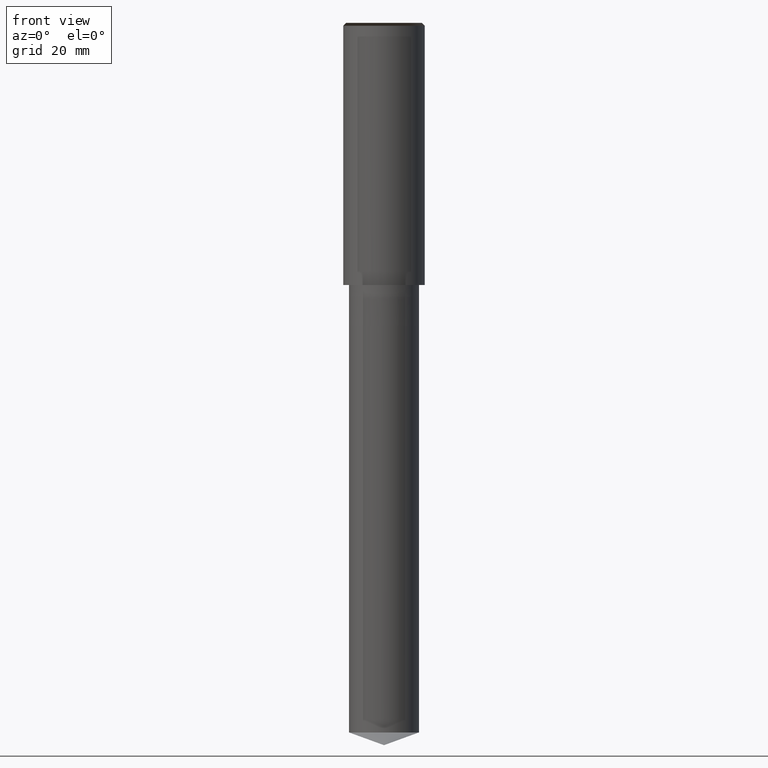
[diagram: clean part render]
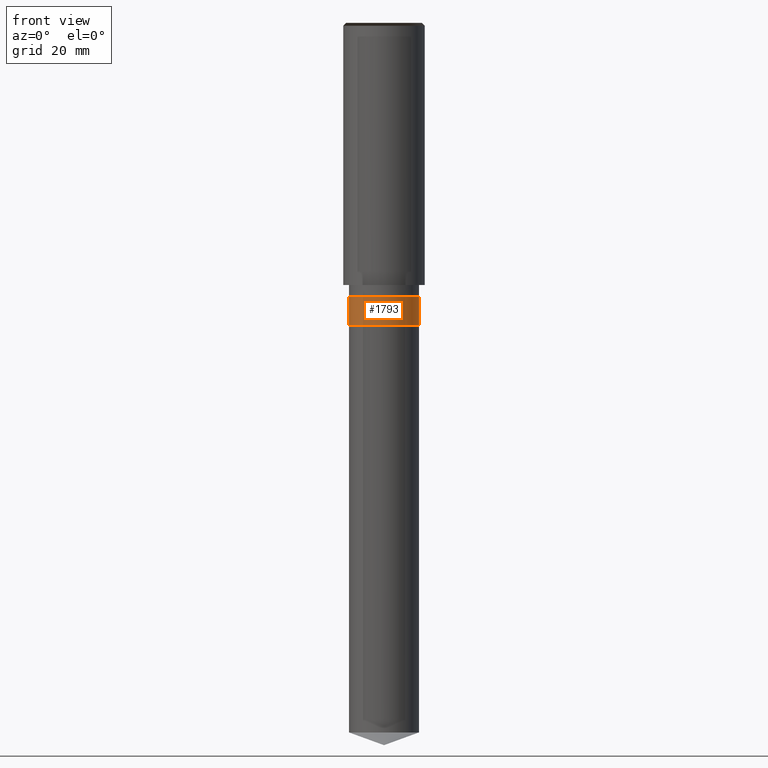
[diagram: same view with one face highlighted and labeled with its STEP entity id]
A machine part, front view. The second image highlights one B-rep face of the part: STEP entity #1793.
In plain terms, the highlighted face is a freeform B-spline surface patch.
Its self-contained STEP definition (entity closure, byte-faithful):
#1460=CARTESIAN_POINT('',(6.0,0.0,-7.0));
#1464=CARTESIAN_POINT('',(-6.0,0.0,-7.0));
#1469=CARTESIAN_POINT('',(-6.0,-6.0,-7.0));
#1470=CARTESIAN_POINT('',(0.0,-6.0,-7.0));
#1471=CARTESIAN_POINT('',(6.0,-6.0,-7.0));
#1472=CARTESIAN_POINT('',(6.0,0.0,-2.0));
#1476=CARTESIAN_POINT('',(-6.0,0.0,-2.0));
#1498=CARTESIAN_POINT('',(-6.0,-6.0,-2.0));
#1499=CARTESIAN_POINT('',(0.0,-6.0,-2.0));
#1500=CARTESIAN_POINT('',(6.0,-6.0,-2.0));
#1774=(
BOUNDED_SURFACE()
B_SPLINE_SURFACE(1,2,(
(#1464,#1469,#1470,#1471,#1460),
(#1476,#1498,#1499,#1500,#1472)
), .UNSPECIFIED.,.F.,.F.,.F.)
B_SPLINE_SURFACE_WITH_KNOTS((2,2),(3,2,3),(
0.0,1.0),(
0.0,0.5,1.0), .UNSPECIFIED.)
GEOMETRIC_REPRESENTATION_ITEM()
RATIONAL_B_SPLINE_SURFACE(((1.0,0.707106781187,1.0,0.707106781187,1.0),
(1.0,0.707106781187,1.0,0.707106781187,1.0)
))
REPRESENTATION_ITEM('')
SURFACE()
);
#1775=(
BOUNDED_CURVE()
B_SPLINE_CURVE(2,(#1460,#1471,#1470,#1469,#1464),.UNSPECIFIED.,.F.,.F.)
B_SPLINE_CURVE_WITH_KNOTS((3,2,3),
(0.0,0.5,1.0),.UNSPECIFIED.)
CURVE()
GEOMETRIC_REPRESENTATION_ITEM()
RATIONAL_B_SPLINE_CURVE((1.0,0.707106781187,1.0,0.707106781187,1.0))
REPRESENTATION_ITEM('')
);
#1776=(
BOUNDED_CURVE()
B_SPLINE_CURVE(1,(#1464,#1476),.UNSPECIFIED.,.F.,.F.)
B_SPLINE_CURVE_WITH_KNOTS((2,2),
(0.0,1.0),.UNSPECIFIED.)
CURVE()
GEOMETRIC_REPRESENTATION_ITEM()
RATIONAL_B_SPLINE_CURVE((1.0,1.0))
REPRESENTATION_ITEM('')
);
#1777=(
BOUNDED_CURVE()
B_SPLINE_CURVE(2,(#1476,#1498,#1499,#1500,#1472),.UNSPECIFIED.,.F.,.F.)
B_SPLINE_CURVE_WITH_KNOTS((3,2,3),
(0.0,0.5,1.0),.UNSPECIFIED.)
CURVE()
GEOMETRIC_REPRESENTATION_ITEM()
RATIONAL_B_SPLINE_CURVE((1.0,0.707106781187,1.0,0.707106781187,1.0))
REPRESENTATION_ITEM('')
);
#1778=(
BOUNDED_CURVE()
B_SPLINE_CURVE(1,(#1472,#1460),.UNSPECIFIED.,.F.,.F.)
B_SPLINE_CURVE_WITH_KNOTS((2,2),
(0.0,1.0),.UNSPECIFIED.)
CURVE()
GEOMETRIC_REPRESENTATION_ITEM()
RATIONAL_B_SPLINE_CURVE((1.0,1.0))
REPRESENTATION_ITEM('')
);
#1779=VERTEX_POINT('',#1460);
#1780=VERTEX_POINT('',#1464);
#1781=VERTEX_POINT('',#1472);
#1782=VERTEX_POINT('',#1476);
#1783=EDGE_CURVE('',#1779,#1780,#1775,.T.);
#1784=EDGE_CURVE('',#1780,#1782,#1776,.T.);
#1785=EDGE_CURVE('',#1782,#1781,#1777,.T.);
#1786=EDGE_CURVE('',#1781,#1779,#1778,.T.);
#1787=ORIENTED_EDGE('',*,*,#1783,.T.);
#1788=ORIENTED_EDGE('',*,*,#1784,.T.);
#1789=ORIENTED_EDGE('',*,*,#1785,.T.);
#1790=ORIENTED_EDGE('',*,*,#1786,.T.);
#1791=EDGE_LOOP('',(#1787,#1788,#1789,#1790));
#1792=FACE_OUTER_BOUND('',#1791,.T.);
#1793=ADVANCED_FACE('',(#1792),#1774,.T.);